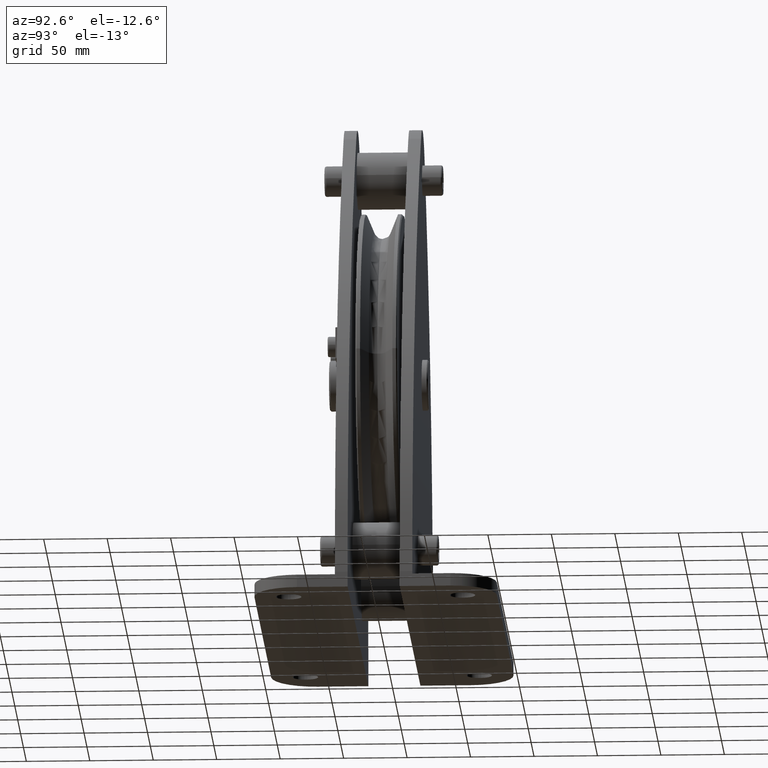
[diagram: clean part render]
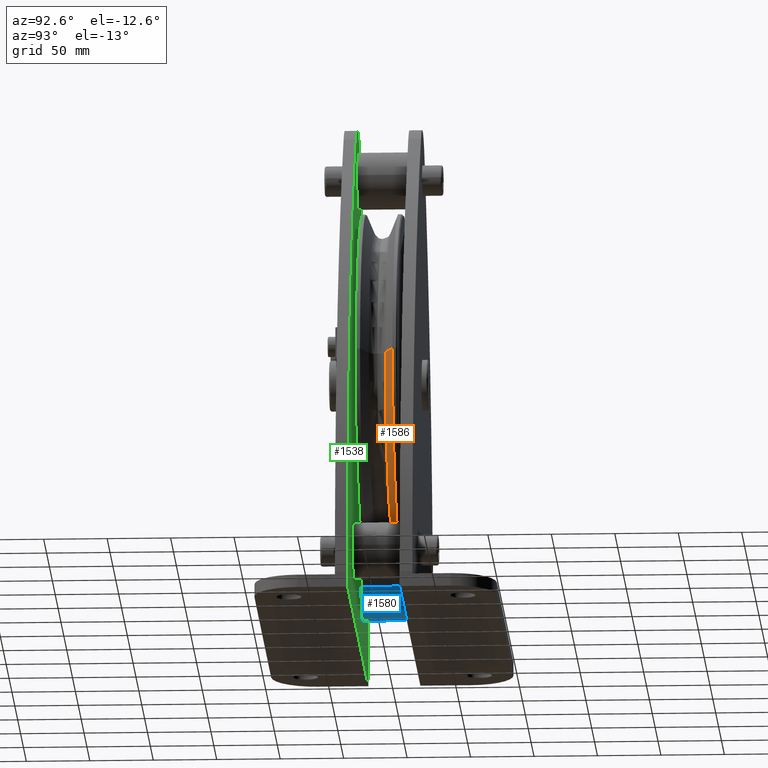
[diagram: same view with three faces highlighted in distinct colors, each labeled with its STEP entity id]
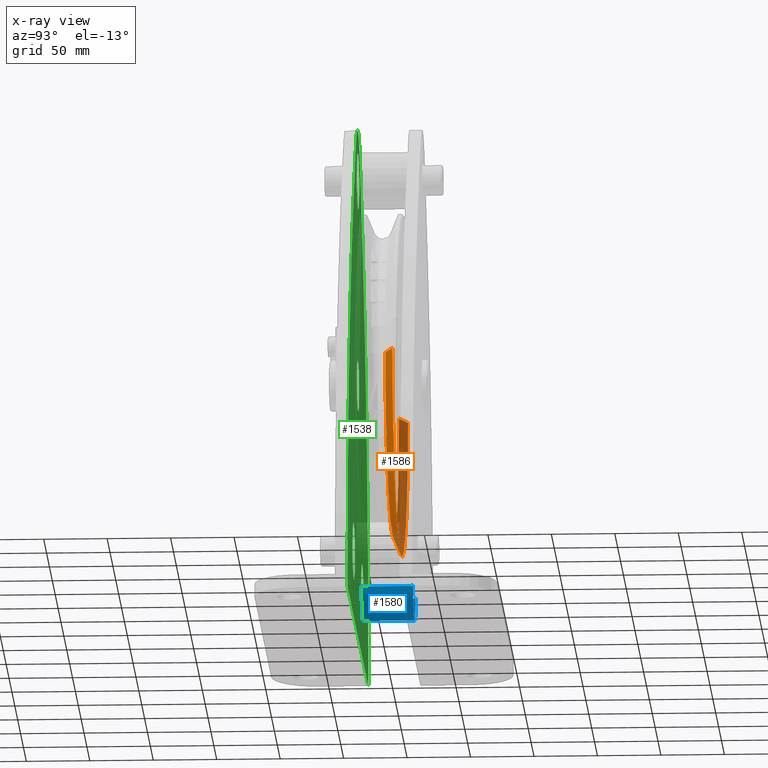
[diagram: x-ray of the same camera — body ghosted, the three highlighted faces saturated]
A machine part, auxiliary view with three faces highlighted in distinct colors.
The next image is the same camera in x-ray (body ghosted, the three faces saturated) — at least one of them is partly hidden behind the body in this view.
Their STEP definitions:

[orange] entity #1586 — the highlighted conical surface has half-angle 67.5 deg.
#1586=ADVANCED_FACE('',(#3424),#3425,.T.);
#3424=FACE_OUTER_BOUND('',#5496,.T.);
#3425=CONICAL_SURFACE('',#5497,127.410608,1.17809725595661);
#5496=EDGE_LOOP('',(#10503,#10504,#10505,#10506));
#5497=AXIS2_PLACEMENT_3D('',#10507,#10508,#10509);
#10503=ORIENTED_EDGE('',*,*,#12819,.T.);
#10504=ORIENTED_EDGE('',*,*,#12824,.F.);
#10505=ORIENTED_EDGE('',*,*,#12820,.T.);
#10506=ORIENTED_EDGE('',*,*,#14224,.T.);
#10507=CARTESIAN_POINT('',(0.0,9.610786,0.0));
#10508=DIRECTION('',(-0.0,1.0,-0.0));
#10509=DIRECTION('',(1.0,0.0,0.0));
#12819=EDGE_CURVE('',#15597,#15603,#15604,.T.);
#12820=EDGE_CURVE('',#15605,#15599,#15606,.T.);
#12824=EDGE_CURVE('',#15605,#15603,#15610,.T.);
#14224=EDGE_CURVE('',#15599,#15597,#17686,.T.);
#15597=VERTEX_POINT('',#23097);
#15599=VERTEX_POINT('',#23100);
#15603=VERTEX_POINT('',#23105);
#15604=LINE('',#23106,#23107);
#15605=VERTEX_POINT('',#23108);
#15606=LINE('',#23109,#23110);
#15610=CIRCLE('',#23114,119.821216);
#17686=CIRCLE('',#25924,135.0);
#23097=CARTESIAN_POINT('',(135.0,12.754415,0.0));
#23100=CARTESIAN_POINT('',(-135.0,12.754415,1.65327317884893E-014));
#23105=CARTESIAN_POINT('',(119.821216,6.467157,0.0));
#23106=CARTESIAN_POINT('',(127.410608,9.610786,-1.56032993264618E-014));
#23107=VECTOR('',#28827,1.0);
#23108=CARTESIAN_POINT('',(-119.821216,6.467157,1.46738668644344E-014));
#23109=CARTESIAN_POINT('',(-127.410608,9.610786,1.56032993264618E-014));
#23110=VECTOR('',#28828,1.0);
#23114=AXIS2_PLACEMENT_3D('',#28835,#28836,#28837);
#25924=AXIS2_PLACEMENT_3D('',#30448,#30449,#30450);
#28827=DIRECTION('',(-0.923879536667397,-0.382683422331353,1.13142611737747E-016));
#28828=DIRECTION('',(-0.923879536667397,0.382683422331353,1.13142611737747E-016));
#28835=CARTESIAN_POINT('',(0.0,6.467157,0.0));
#28836=DIRECTION('',(0.0,-1.0,0.0));
#28837=DIRECTION('',(1.0,0.0,0.0));
#30448=CARTESIAN_POINT('',(0.0,12.754415,0.0));
#30449=DIRECTION('',(0.0,-1.0,0.0));
#30450=DIRECTION('',(1.0,0.0,0.0));

[blue] entity #1580 — the highlighted cylindrical surface (edge-blend (fillet) strip) has radius 22.5 mm, axis along (0, -1, 0).
#1580=ADVANCED_FACE('',(#3415),#3416,.T.);
#3415=FACE_OUTER_BOUND('',#5487,.T.);
#3416=CYLINDRICAL_SURFACE('',#5488,22.5);
#5487=EDGE_LOOP('',(#10479,#10480,#10481,#10482));
#5488=AXIS2_PLACEMENT_3D('',#10483,#10484,#10485);
#10479=ORIENTED_EDGE('',*,*,#12830,.T.);
#10480=ORIENTED_EDGE('',*,*,#14146,.F.);
#10481=ORIENTED_EDGE('',*,*,#12832,.T.);
#10482=ORIENTED_EDGE('',*,*,#14075,.F.);
#10483=CARTESIAN_POINT('',(-75.0,0.0,-150.0));
#10484=DIRECTION('',(0.0,-1.0,0.0));
#10485=DIRECTION('',(1.0,0.0,0.0));
#12830=EDGE_CURVE('',#15616,#15617,#15618,.T.);
#12832=EDGE_CURVE('',#15621,#15619,#15622,.T.);
#14075=EDGE_CURVE('',#15616,#15619,#17476,.T.);
#14146=EDGE_CURVE('',#15621,#15617,#17577,.T.);
#15616=VERTEX_POINT('',#23122);
#15617=VERTEX_POINT('',#23123);
#15618=LINE('',#23124,#23125);
#15619=VERTEX_POINT('',#23126);
#15621=VERTEX_POINT('',#23128);
#15622=LINE('',#23129,#23130);
#17476=CIRCLE('',#25648,22.5);
#17577=CIRCLE('',#25782,22.5);
#23122=CARTESIAN_POINT('',(-52.5,20.5,-150.0));
#23123=CARTESIAN_POINT('',(-52.5,-20.5,-150.0));
#23124=CARTESIAN_POINT('',(-52.5,0.0,-150.0));
#23125=VECTOR('',#28843,1.0);
#23126=CARTESIAN_POINT('',(-97.5,20.5,-150.0));
#23128=CARTESIAN_POINT('',(-97.5,-20.5,-150.0));
#23129=CARTESIAN_POINT('',(-97.5,0.0,-150.0));
#23130=VECTOR('',#28847,1.0);
#25648=AXIS2_PLACEMENT_3D('',#30262,#30263,#30264);
#25782=AXIS2_PLACEMENT_3D('',#30352,#30353,#30354);
#28843=DIRECTION('',(0.0,-1.0,0.0));
#28847=DIRECTION('',(-0.0,1.0,-0.0));
#30262=CARTESIAN_POINT('',(-75.0,20.5,-150.0));
#30263=DIRECTION('',(-0.0,1.0,0.0));
#30264=DIRECTION('',(1.0,0.0,0.0));
#30352=CARTESIAN_POINT('',(-75.0,-20.5,-150.0));
#30353=DIRECTION('',(0.0,-1.0,0.0));
#30354=DIRECTION('',(1.0,0.0,0.0));

[green] entity #1538 — the highlighted planar face has unit normal (0, -1, 0).
#1538=ADVANCED_FACE('',(#3344,#3345,#3346,#3347,#3348),#3349,.F.);
#3344=FACE_BOUND('',#5416,.T.);
#3345=FACE_BOUND('',#5417,.T.);
#3346=FACE_BOUND('',#5418,.T.);
#3347=FACE_BOUND('',#5419,.T.);
#3348=FACE_OUTER_BOUND('',#5420,.T.);
#3349=PLANE('',#5421);
#5416=EDGE_LOOP('',(#10276,#10277));
#5417=EDGE_LOOP('',(#10278,#10279));
#5418=EDGE_LOOP('',(#10280,#10281));
#5419=EDGE_LOOP('',(#10282,#10283,#10284));
#5420=EDGE_LOOP('',(#10285,#10286,#10287,#10288,#10289,#10290));
#5421=AXIS2_PLACEMENT_3D('',#10291,#10292,#10293);
#10276=ORIENTED_EDGE('',*,*,#12833,.T.);
#10277=ORIENTED_EDGE('',*,*,#14146,.T.);
#10278=ORIENTED_EDGE('',*,*,#12838,.T.);
#10279=ORIENTED_EDGE('',*,*,#14147,.T.);
#10280=ORIENTED_EDGE('',*,*,#12843,.T.);
#10281=ORIENTED_EDGE('',*,*,#14148,.T.);
#10282=ORIENTED_EDGE('',*,*,#14149,.T.);
#10283=ORIENTED_EDGE('',*,*,#12491,.T.);
#10284=ORIENTED_EDGE('',*,*,#14150,.T.);
#10285=ORIENTED_EDGE('',*,*,#14151,.F.);
#10286=ORIENTED_EDGE('',*,*,#14152,.F.);
#10287=ORIENTED_EDGE('',*,*,#14153,.F.);
#10288=ORIENTED_EDGE('',*,*,#14154,.F.);
#10289=ORIENTED_EDGE('',*,*,#14155,.F.);
#10290=ORIENTED_EDGE('',*,*,#14156,.F.);
#10291=CARTESIAN_POINT('',(1.06175305339693E-012,-20.5,-43.4930480133687));
#10292=DIRECTION('',(0.0,-1.0,0.0));
#10293=DIRECTION('',(1.0,0.0,0.0));
#12491=EDGE_CURVE('',#15053,#15050,#15054,.T.);
#12833=EDGE_CURVE('',#15617,#15621,#15623,.T.);
#12838=EDGE_CURVE('',#15626,#15630,#15632,.T.);
#12843=EDGE_CURVE('',#15635,#15639,#15641,.T.);
#14146=EDGE_CURVE('',#15621,#15617,#17577,.T.);
#14147=EDGE_CURVE('',#15630,#15626,#17578,.T.);
#14148=EDGE_CURVE('',#15639,#15635,#17579,.T.);
#14149=EDGE_CURVE('',#17580,#15053,#17581,.T.);
#14150=EDGE_CURVE('',#15050,#17580,#17582,.T.);
#14151=EDGE_CURVE('',#17583,#17584,#17585,.T.);
#14152=EDGE_CURVE('',#17586,#17583,#17587,.T.);
#14153=EDGE_CURVE('',#17588,#17586,#17589,.T.);
#14154=EDGE_CURVE('',#17590,#17588,#17591,.T.);
#14155=EDGE_CURVE('',#17592,#17590,#17593,.T.);
#14156=EDGE_CURVE('',#17584,#17592,#17594,.T.);
#15050=VERTEX_POINT('',#20205);
#15053=VERTEX_POINT('',#20209);
#15054=CIRCLE('',#20210,20.0);
#15617=VERTEX_POINT('',#23123);
#15621=VERTEX_POINT('',#23128);
#15623=CIRCLE('',#23131,22.5);
#15626=VERTEX_POINT('',#23134);
#15630=VERTEX_POINT('',#23139);
#15632=CIRCLE('',#23142,22.5);
#15635=VERTEX_POINT('',#23145);
#15639=VERTEX_POINT('',#23150);
#15641=CIRCLE('',#23153,22.5);
#17577=CIRCLE('',#25782,22.5);
#17578=CIRCLE('',#25783,22.5);
#17579=CIRCLE('',#25784,22.5);
#17580=VERTEX_POINT('',#25785);
#17581=CIRCLE('',#25786,20.0);
#17582=CIRCLE('',#25787,20.0);
#17583=VERTEX_POINT('',#25788);
#17584=VERTEX_POINT('',#25789);
#17585=CIRCLE('',#25790,560.0000000403);
#17586=VERTEX_POINT('',#25791);
#17587=LINE('',#25792,#25793);
#17588=VERTEX_POINT('',#25794);
#17589=LINE('',#25795,#25796);
#17590=VERTEX_POINT('',#25797);
#17591=LINE('',#25798,#25799);
#17592=VERTEX_POINT('',#25800);
#17593=CIRCLE('',#25801,560.0000000403);
#17594=CIRCLE('',#25802,39.999999989);
#20205=CARTESIAN_POINT('',(2.44929359829471E-015,-20.5,-20.0));
#20209=CARTESIAN_POINT('',(-2.44929359829471E-015,-20.5,20.0));
#20210=AXIS2_PLACEMENT_3D('',#28386,#28387,#28388);
#23123=CARTESIAN_POINT('',(-52.5,-20.5,-150.0));
#23128=CARTESIAN_POINT('',(-97.5,-20.5,-150.0));
#23131=AXIS2_PLACEMENT_3D('',#28848,#28849,#28850);
#23134=CARTESIAN_POINT('',(97.5,-20.5,-150.0));
#23139=CARTESIAN_POINT('',(52.5,-20.5,-150.0));
#23142=AXIS2_PLACEMENT_3D('',#28856,#28857,#28858);
#23145=CARTESIAN_POINT('',(22.5,-20.5,165.0));
#23150=CARTESIAN_POINT('',(-22.5,-20.5,165.0));
#23153=AXIS2_PLACEMENT_3D('',#28864,#28865,#28866);
#25782=AXIS2_PLACEMENT_3D('',#30352,#30353,#30354);
#25783=AXIS2_PLACEMENT_3D('',#30355,#30356,#30357);
#25784=AXIS2_PLACEMENT_3D('',#30358,#30359,#30360);
#25785=CARTESIAN_POINT('',(20.0,-20.5,0.0));
#25786=AXIS2_PLACEMENT_3D('',#30361,#30362,#30363);
#25787=AXIS2_PLACEMENT_3D('',#30364,#30365,#30366);
#25788=CARTESIAN_POINT('',(180.0,-20.5,-190.000000000384));
#25789=CARTESIAN_POINT('',(29.2307692301696,-20.5,192.269770599819));
#25790=AXIS2_PLACEMENT_3D('',#30367,#30368,#30369);
#25791=CARTESIAN_POINT('',(180.0,-20.5,-202.0));
#25792=CARTESIAN_POINT('',(180.0,-20.5,-202.0));
#25793=VECTOR('',#30370,1.0);
#25794=CARTESIAN_POINT('',(-180.0,-20.5,-202.0));
#25795=CARTESIAN_POINT('',(-180.0,-20.5,-202.0));
#25796=VECTOR('',#30371,1.0);
#25797=CARTESIAN_POINT('',(-179.999999999999,-20.5,-190.000000000384));
#25798=CARTESIAN_POINT('',(-180.0,-20.5,-190.0));
#25799=VECTOR('',#30372,1.0);
#25800=CARTESIAN_POINT('',(-29.2307692300395,-20.5,192.269770599973));
#25801=AXIS2_PLACEMENT_3D('',#30373,#30374,#30375);
#25802=AXIS2_PLACEMENT_3D('',#30376,#30377,#30378);
#28386=CARTESIAN_POINT('',(0.0,-20.5,0.0));
#28387=DIRECTION('',(0.0,-1.0,0.0));
#28388=DIRECTION('',(1.0,0.0,0.0));
#28848=CARTESIAN_POINT('',(-75.0,-20.5,-150.0));
#28849=DIRECTION('',(0.0,-1.0,0.0));
#28850=DIRECTION('',(1.0,0.0,0.0));
#28856=CARTESIAN_POINT('',(75.0,-20.5,-150.0));
#28857=DIRECTION('',(0.0,-1.0,0.0));
#28858=DIRECTION('',(1.0,0.0,0.0));
#28864=CARTESIAN_POINT('',(0.0,-20.5,165.0));
#28865=DIRECTION('',(0.0,-1.0,0.0));
#28866=DIRECTION('',(1.0,0.0,0.0));
#30352=CARTESIAN_POINT('',(-75.0,-20.5,-150.0));
#30353=DIRECTION('',(0.0,-1.0,0.0));
#30354=DIRECTION('',(1.0,0.0,0.0));
#30355=CARTESIAN_POINT('',(75.0,-20.5,-150.0));
#30356=DIRECTION('',(0.0,-1.0,0.0));
#30357=DIRECTION('',(1.0,0.0,0.0));
#30358=CARTESIAN_POINT('',(0.0,-20.5,165.0));
#30359=DIRECTION('',(0.0,-1.0,0.0));
#30360=DIRECTION('',(1.0,0.0,0.0));
#30361=CARTESIAN_POINT('',(0.0,-20.5,0.0));
#30362=DIRECTION('',(0.0,-1.0,0.0));
#30363=DIRECTION('',(1.0,0.0,0.0));
#30364=CARTESIAN_POINT('',(0.0,-20.5,0.0));
#30365=DIRECTION('',(0.0,-1.0,0.0));
#30366=DIRECTION('',(1.0,0.0,0.0));
#30367=CARTESIAN_POINT('',(-380.0000000403,-20.5,-190.000000017));
#30368=DIRECTION('',(0.0,-1.0,0.0));
#30369=DIRECTION('',(1.0,0.0,2.96706912985774E-011));
#30370=DIRECTION('',(0.0,0.0,1.0));
#30371=DIRECTION('',(1.0,0.0,0.0));
#30372=DIRECTION('',(0.0,0.0,-1.0));
#30373=CARTESIAN_POINT('',(380.0000000403,-20.5,-190.000000016999));
#30374=DIRECTION('',(0.0,-1.0,0.0));
#30375=DIRECTION('',(-0.730769230787535,0.0,0.682624590338052));
#30376=CARTESIAN_POINT('',(1.77635683940025E-014,-20.5,164.964787001));
#30377=DIRECTION('',(0.0,-1.0,0.0));
#30378=DIRECTION('',(0.730769230951949,0.0,0.682624590162042));